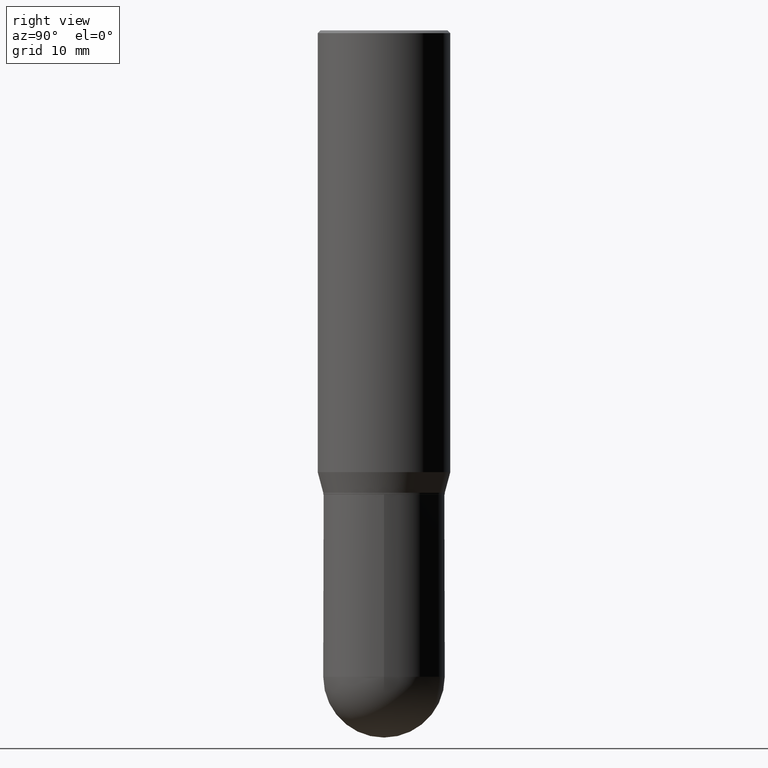
[diagram: clean part render]
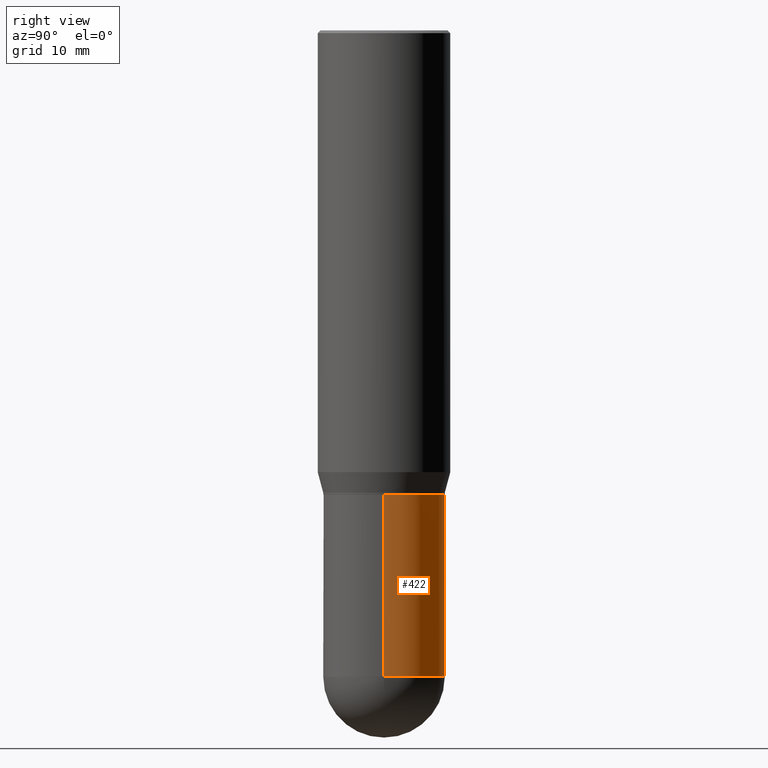
[diagram: same view with one face highlighted and labeled with its STEP entity id]
A machine part, right view. The second image highlights one B-rep face of the part: STEP entity #422.
In plain terms, the highlighted cylindrical surface (partial cylindrical patch) has radius 8.7313 mm, axis along (-0, 0, 1).
Its self-contained STEP definition (entity closure, byte-faithful):
#19 = DIRECTION ( 'NONE',  ( 1.000000000000000000, -6.982962677686266711E-15, 0.000000000000000000 ) ) ;
#20 = CIRCLE ( 'NONE', #46, 0.3437500000000001110 ) ;
#26 = CARTESIAN_POINT ( 'NONE',  ( 0.3437500000000001665, -1.336582700025891149E-14, -3.656250000000000000 ) ) ;
#28 = CIRCLE ( 'NONE', #423, 0.3437500000000001665 ) ;
#30 = FACE_OUTER_BOUND ( 'NONE', #208, .T. ) ;
#46 = AXIS2_PLACEMENT_3D ( 'NONE', #92, #254, #19 ) ;
#63 = VERTEX_POINT ( 'NONE', #352 ) ;
#66 = CARTESIAN_POINT ( 'NONE',  ( 8.941245322614405682E-29, -1.276572864514525169E-14, -3.656250000000000000 ) ) ;
#82 = ORIENTED_EDGE ( 'NONE', *, *, #223, .F. ) ;
#92 = CARTESIAN_POINT ( 'NONE',  ( 6.419355616235984688E-29, -9.165138514463258190E-15, -2.625000000000000444 ) ) ;
#119 = AXIS2_PLACEMENT_3D ( 'NONE', #133, #138, #452 ) ;
#123 = VERTEX_POINT ( 'NONE', #147 ) ;
#133 = CARTESIAN_POINT ( 'NONE',  ( 8.941245322614405682E-29, -1.276572864514525169E-14, -3.656250000000000000 ) ) ;
#138 = DIRECTION ( 'NONE',  ( -2.445468806185136597E-29, 3.491481338843145583E-15, 1.000000000000000000 ) ) ;
#139 = CARTESIAN_POINT ( 'NONE',  ( -0.3437500000000001110, -8.522942925628910551E-15, -2.625000000000000444 ) ) ;
#144 = LINE ( 'NONE', #462, #361 ) ;
#147 = CARTESIAN_POINT ( 'NONE',  ( 2.400393420454744901E-15, 0.3437499999999875100, -3.656250000000001332 ) ) ;
#168 = CARTESIAN_POINT ( 'NONE',  ( -0.3437500000000001665, -8.522942925628910551E-15, -3.656250000000000000 ) ) ;
#172 = AXIS2_PLACEMENT_3D ( 'NONE', #302, #180, #263 ) ;
#180 = DIRECTION ( 'NONE',  ( -2.445468806185136597E-29, 3.491481338843145583E-15, 1.000000000000000000 ) ) ;
#196 = ORIENTED_EDGE ( 'NONE', *, *, #392, .T. ) ;
#200 = VERTEX_POINT ( 'NONE', #168 ) ;
#208 = EDGE_LOOP ( 'NONE', ( #236, #196, #82, #487, #440 ) ) ;
#223 = EDGE_CURVE ( 'NONE', #63, #311, #20, .T. ) ;
#236 = ORIENTED_EDGE ( 'NONE', *, *, #336, .T. ) ;
#254 = DIRECTION ( 'NONE',  ( -2.445468806185136597E-29, 3.491481338843145583E-15, 1.000000000000000000 ) ) ;
#263 = DIRECTION ( 'NONE',  ( 1.000000000000000000, -6.982962677686266711E-15, 4.876176775795935793E-29 ) ) ;
#264 = EDGE_CURVE ( 'NONE', #385, #123, #483, .T. ) ;
#273 = DIRECTION ( 'NONE',  ( -2.445468806185136877E-29, 3.491481338843145188E-15, 1.000000000000000000 ) ) ;
#277 = CARTESIAN_POINT ( 'NONE',  ( 0.3437500000000001110, -2.400393420454654971E-15, 1.676185766679853419E-29 ) ) ;
#295 = VECTOR ( 'NONE', #273, 39.37007874015748143 ) ;
#302 = CARTESIAN_POINT ( 'NONE',  ( 0.000000000000000000, 0.000000000000000000, 0.000000000000000000 ) ) ;
#311 = VERTEX_POINT ( 'NONE', #139 ) ;
#336 = EDGE_CURVE ( 'NONE', #123, #200, #28, .T. ) ;
#339 = DIRECTION ( 'NONE',  ( -2.445468806185136597E-29, 3.491481338843145583E-15, 1.000000000000000000 ) ) ;
#346 = DIRECTION ( 'NONE',  ( -2.445468806185136877E-29, 3.491481338843145188E-15, 1.000000000000000000 ) ) ;
#352 = CARTESIAN_POINT ( 'NONE',  ( 0.3437500000000001110, -1.156553193491791316E-14, -2.625000000000000444 ) ) ;
#361 = VECTOR ( 'NONE', #346, 39.37007874015748143 ) ;
#380 = DIRECTION ( 'NONE',  ( 1.000000000000000000, -6.982962677686265922E-15, 0.000000000000000000 ) ) ;
#385 = VERTEX_POINT ( 'NONE', #26 ) ;
#392 = EDGE_CURVE ( 'NONE', #200, #311, #144, .T. ) ;
#422 = ADVANCED_FACE ( 'NONE', ( #30 ), #502, .T. ) ;
#423 = AXIS2_PLACEMENT_3D ( 'NONE', #66, #339, #380 ) ;
#440 = ORIENTED_EDGE ( 'NONE', *, *, #264, .T. ) ;
#452 = DIRECTION ( 'NONE',  ( 1.000000000000000000, -6.982962677686265922E-15, 0.000000000000000000 ) ) ;
#462 = CARTESIAN_POINT ( 'NONE',  ( -0.3437500000000001110, 2.442490654175345178E-15, -1.690883937275124476E-29 ) ) ;
#467 = LINE ( 'NONE', #277, #295 ) ;
#482 = EDGE_CURVE ( 'NONE', #385, #63, #467, .T. ) ;
#483 = CIRCLE ( 'NONE', #119, 0.3437500000000001665 ) ;
#487 = ORIENTED_EDGE ( 'NONE', *, *, #482, .F. ) ;
#502 = CYLINDRICAL_SURFACE ( 'NONE', #172, 0.3437500000000001110 ) ;